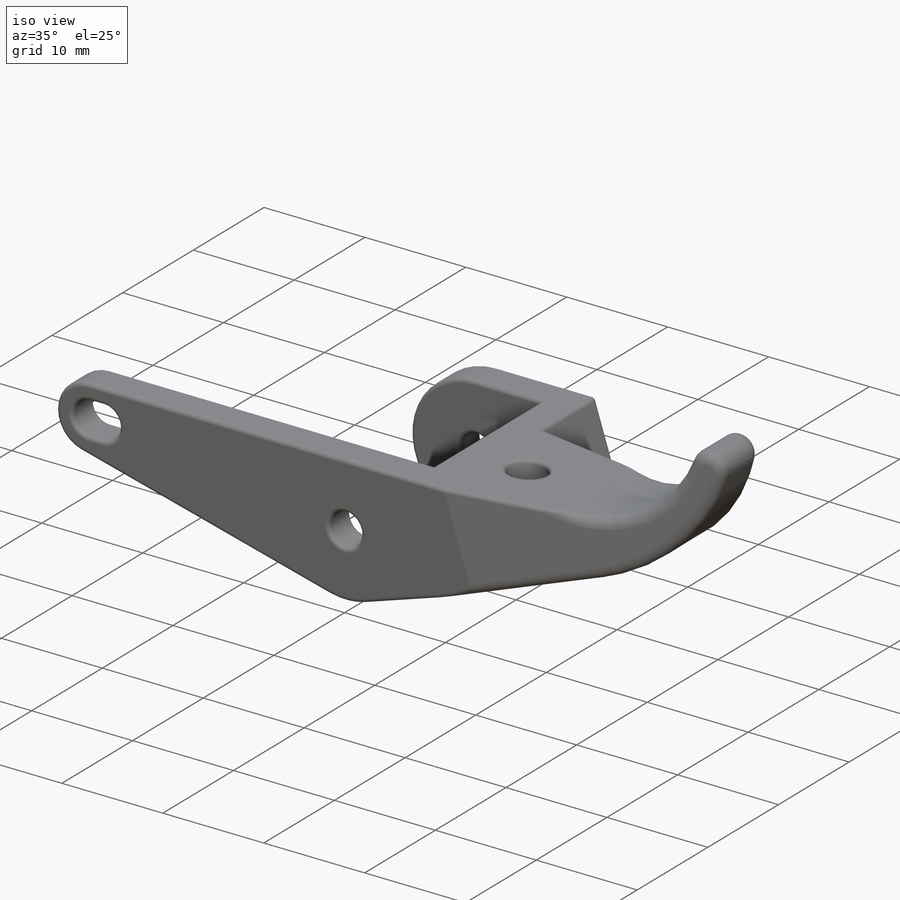
[diagram: iso view]
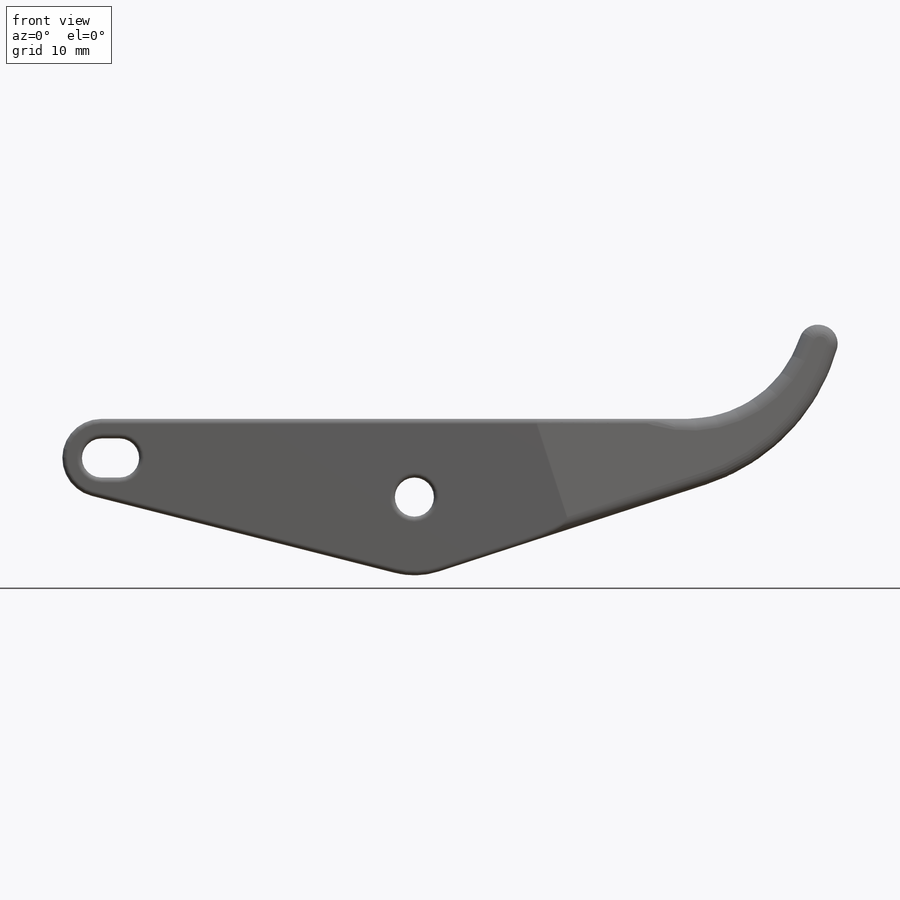
[diagram: front view]
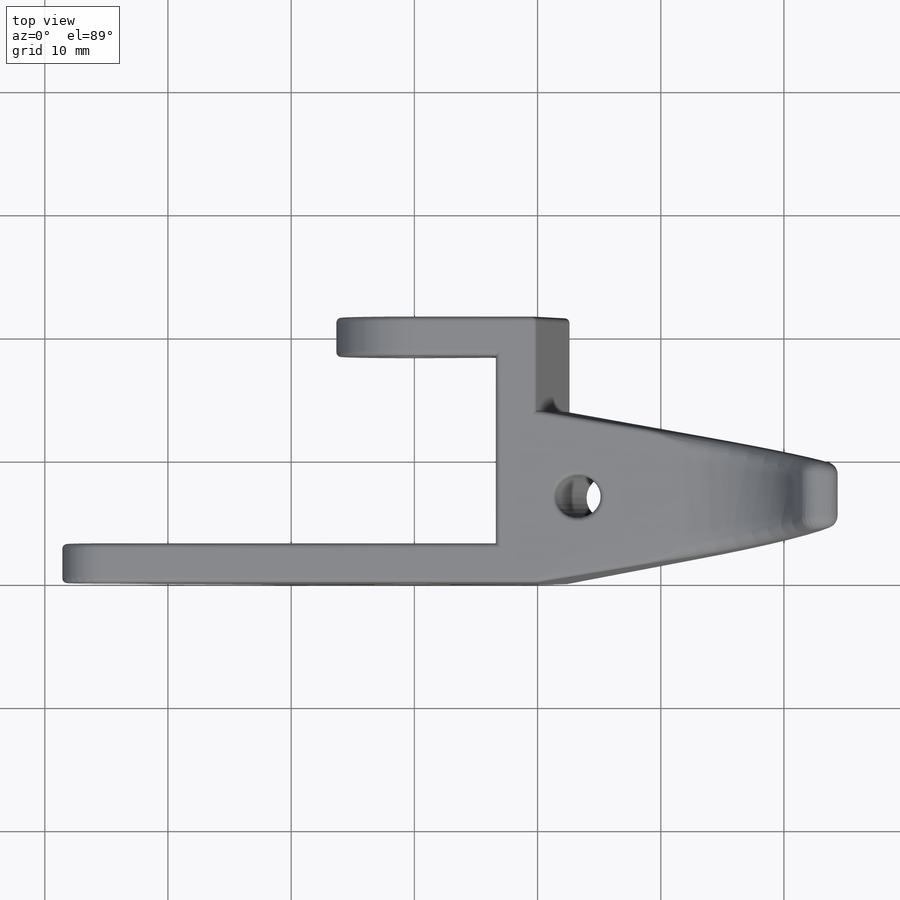
[diagram: top view]
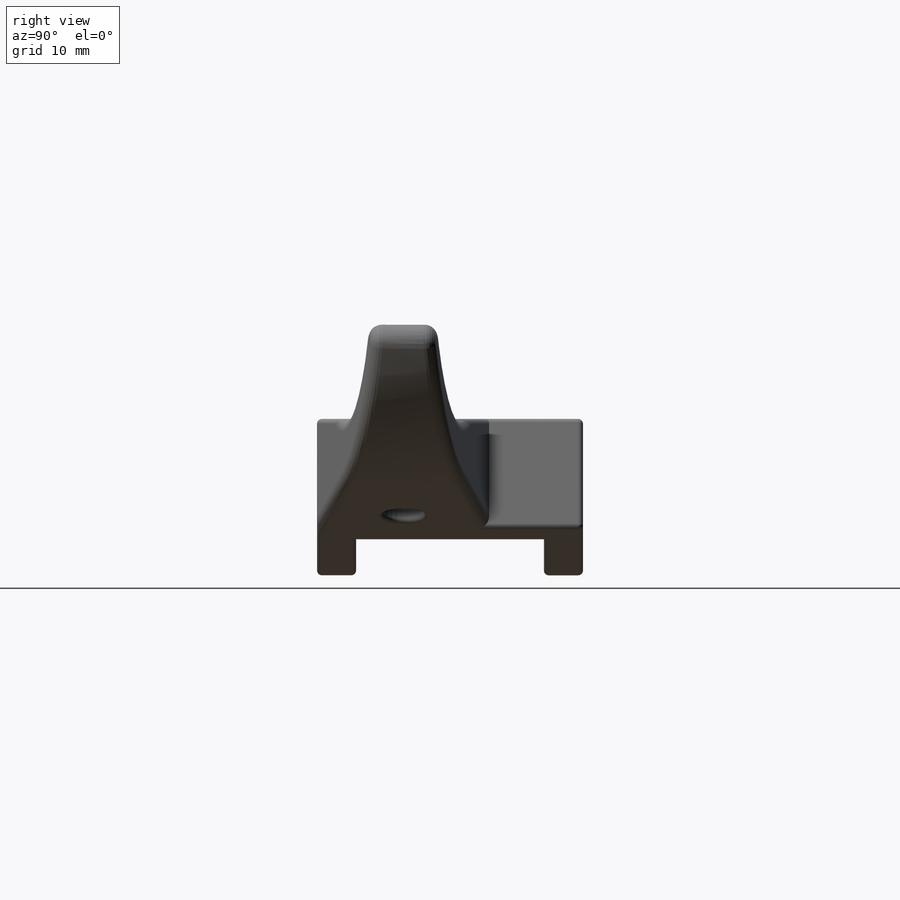
[diagram: right view]
SOLIDWORKS PART (.sldprt)
format: sldprt  version: not decoded by parser v0  size: 583,168 bytes
history: native  units: mm
features: sketch x8, fillet x5, extrude x4, cut_extrude x2, material x1, hole x1, thread x1 (+16 scaffold rows collapsed)
feature tree (38):
  scaffold x16  (default folders/planes/origin — collapsed)
  material  "Material <not specified>"
  sketch  "Sketch1"  dims[c1.D2=3.175mm c1.D3=6.35mm c1.D10=3.175mm c1.D12=3.175mm c1.D1=25.4mm c1.D8=12.7mm c2.D8=80.0deg c2.D13=23.9268mm c2.D4=12.7mm c2.D5=38.1mm c2.D6=63.5mm c2.D7=12.7mm c2.D9=3.175mm c2.D11=41.275mm]
  extrude  "Extrude1"  Depth=3.175mm
  sketch  "Sketch3"  dims[D1=3.175mm]
  extrude  "Extrude2"  Depth=15.24mm
  sketch  "Sketch4"  dims[D1=0.0mm]
  extrude  "Extrude3"  Depth=3.175mm
  sketch  "Sketch5"  dims[D1=0.0mm]
  extrude  "Extrude4"  Depth=13.97mm
  sketch  "Sketch6"  dims[D1=3.175mm]
  cut_extrude  "Extrude6"  [1 undecoded]
  sketch  "Sketch7"  dims[c1.D1=~28.470582mm c2.D1=10.0deg c2.D2=~27.578101mm c3.D2=10.0deg]
  cut_extrude  "Extrude7"  [1 undecoded]
  hole  "#8-32 Tapped Hole1"  Diameter=3.4544mm Depth=28.711492mm
  sketch  "3DSketch2"  dims[D1=3.175mm]
  sketch  "Sketch10"  dims[hole-wizard template sketch: 60 standard entries collapsed; hole parameters kept: c18.Thru Tap Drill Depth=~28.711492mm]
  thread  "Hole Thread1"  Diameter=4.1656mm  [1 undecoded]
  fillet  "Fillet4"  Radius=1.524mm
  fillet  "Fillet2"  Radius=1.016mm
  fillet  "Fillet3"  Radius=1.016mm
  fillet  "Fillet5"  Radius=0.396875mm
  fillet  "Fillet6"  Radius=0.396875mm
decode coverage: 19 of 21 modeling features carry decoded parameters
note: ~ marks probable driven/reference dimensions
note: 3 parameter values undecoded
note: suppression state not decoded; provenance and decode notes live in map.json
